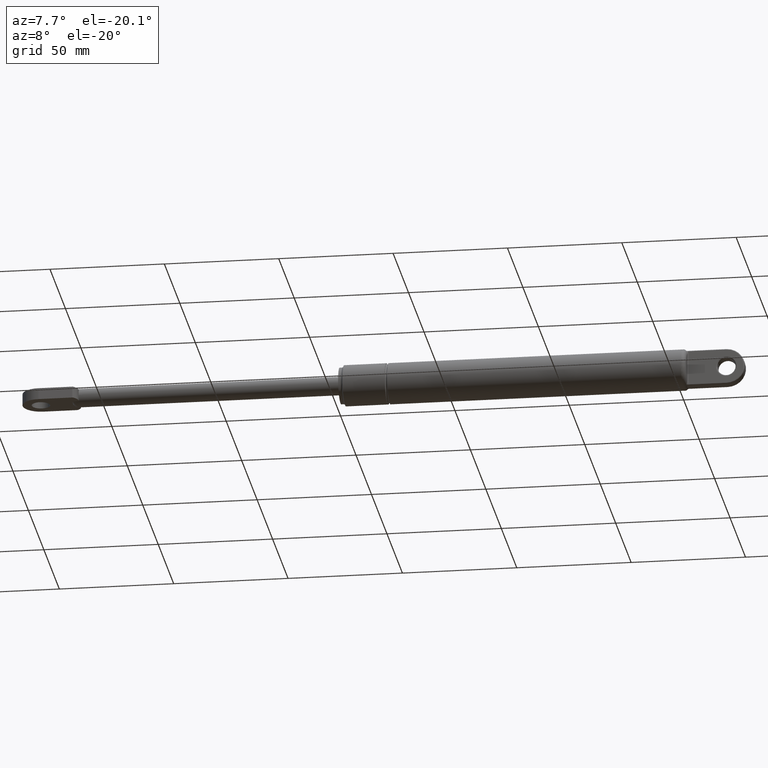
[diagram: clean part render]
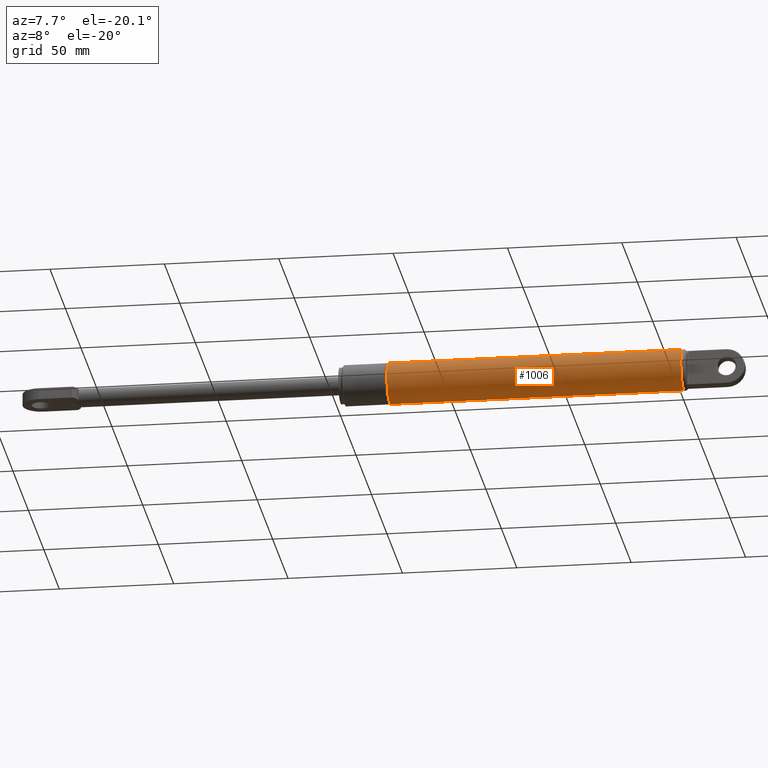
[diagram: same view with one face highlighted and labeled with its STEP entity id]
A machine part, auxiliary view. The second image highlights one B-rep face of the part: STEP entity #1006.
In plain terms, the highlighted cylindrical surface (bore or boss wall) has radius 9 mm, axis along (-1, 0, 0).
Its self-contained STEP definition (entity closure, byte-faithful):
#203=CYLINDRICAL_SURFACE('',#1097,9.00000000000001);
#229=FACE_BOUND('',#354,.T.);
#277=FACE_OUTER_BOUND('',#353,.T.);
#353=EDGE_LOOP('',(#822));
#354=EDGE_LOOP('',(#823));
#424=CIRCLE('',#1077,9.00000000000001);
#431=CIRCLE('',#1090,9.00000000000002);
#505=VERTEX_POINT('',#1747);
#506=VERTEX_POINT('',#1862);
#613=EDGE_CURVE('',#505,#505,#424,.T.);
#623=EDGE_CURVE('',#506,#506,#431,.T.);
#822=ORIENTED_EDGE('',*,*,#623,.F.);
#823=ORIENTED_EDGE('',*,*,#613,.F.);
#1006=ADVANCED_FACE('',(#277,#229),#203,.T.);
#1077=AXIS2_PLACEMENT_3D('',#1748,#1246,#1247);
#1090=AXIS2_PLACEMENT_3D('',#1863,#1273,#1274);
#1097=AXIS2_PLACEMENT_3D('',#1874,#1287,#1288);
#1246=DIRECTION('center_axis',(1.,0.,0.));
#1247=DIRECTION('ref_axis',(0.,1.22464679914735E-16,-1.));
#1273=DIRECTION('center_axis',(-1.,0.,0.));
#1274=DIRECTION('ref_axis',(0.,0.,1.));
#1287=DIRECTION('center_axis',(-1.,0.,0.));
#1288=DIRECTION('ref_axis',(0.,0.,1.));
#1747=CARTESIAN_POINT('',(149.996710490721,-2.20436423846524E-15,9.00000000000001));
#1748=CARTESIAN_POINT('Origin',(149.996710490721,0.,0.));
#1862=CARTESIAN_POINT('',(21.5,0.,9.00000000000002));
#1863=CARTESIAN_POINT('Origin',(21.5,0.,0.));
#1874=CARTESIAN_POINT('Origin',(86.7483552453604,0.,0.));